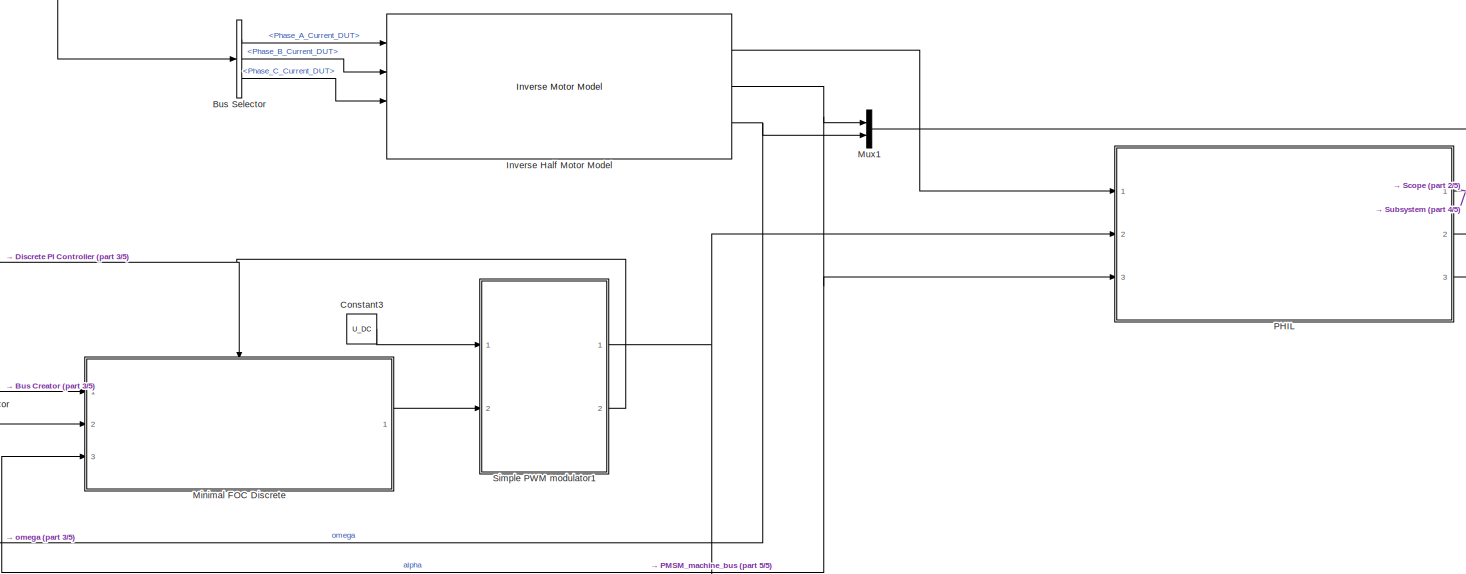
[diagram: root canvas - part 1/5, central region]
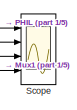
[diagram: root canvas - part 2/5, middle right region]
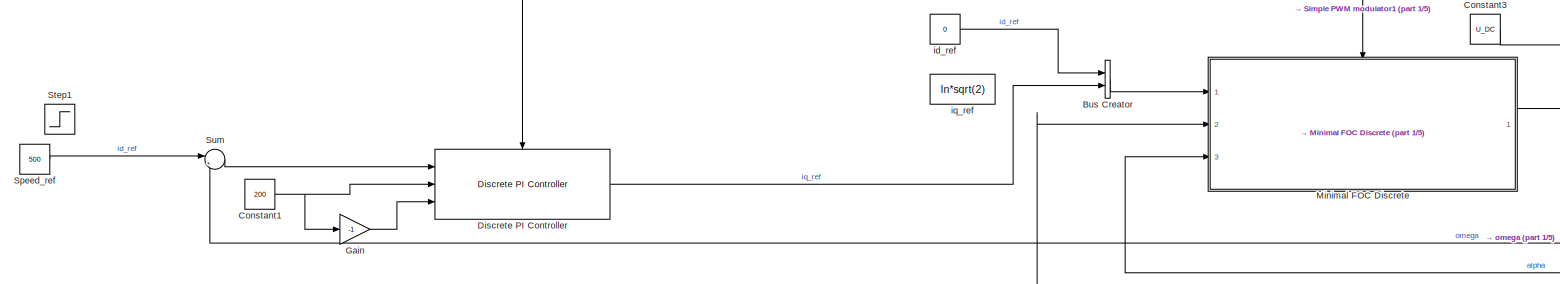
[diagram: root canvas - part 3/5, middle left region]
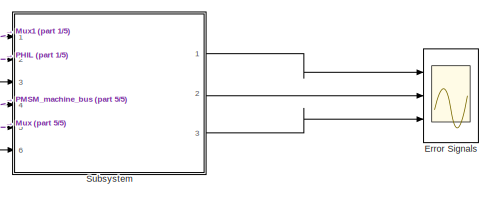
[diagram: root canvas - part 4/5, bottom right region]
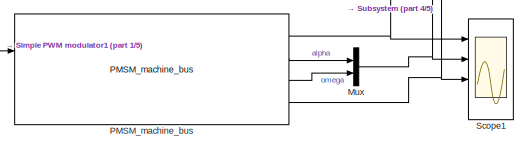
[diagram: root canvas - part 5/5, bottom center region]
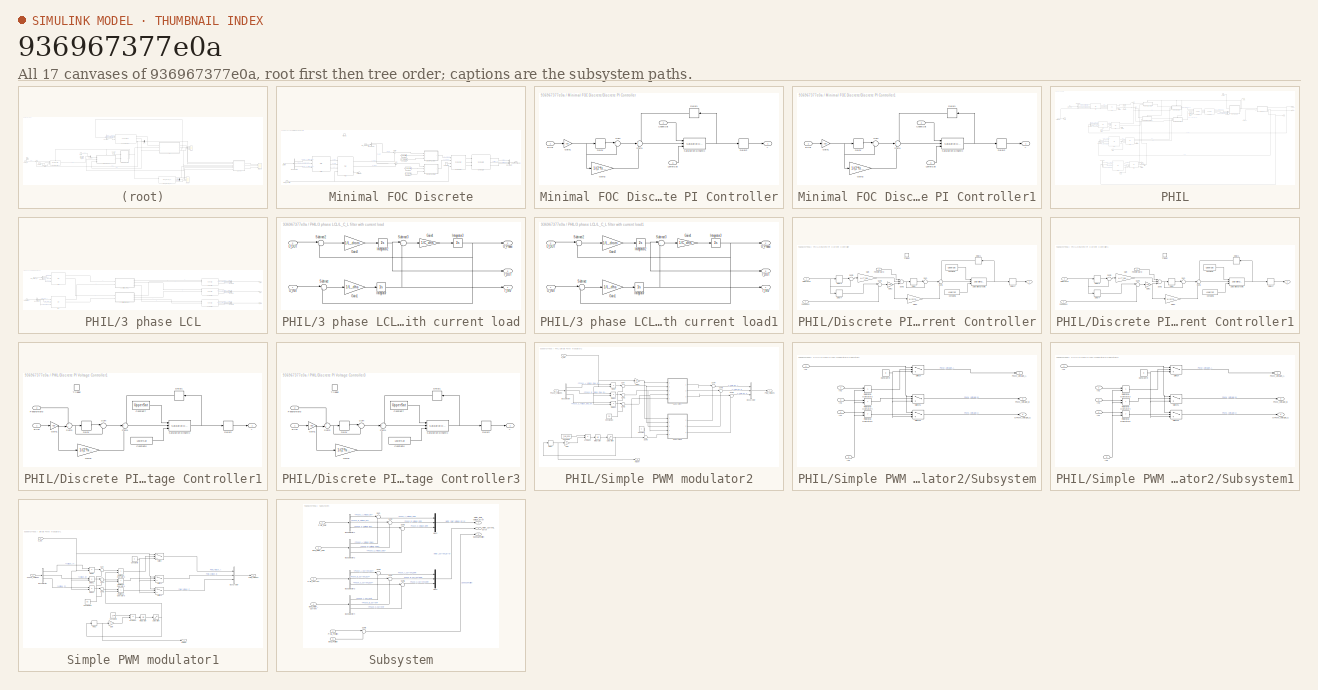
[diagram: thumbnail index - all 17 canvases of the model, root first then tree order]
MODEL slx_936967377e0a
KIND model
CONFIG AbsTol = auto
CONFIG EnableMultiTasking = off
CONFIG FixedStep = auto
CONFIG MaxStep = 1e-6
CONFIG MinStep = auto
CONFIG RelTol = 1e-3
CONFIG SampleTimeConstraint = Unconstrained
CONFIG Solver = VariableStepAuto
CONFIG SolverName = VariableStepAuto
CONFIG StartTime = 0.0
CONFIG StopTime = 5
BLOCK [BusCreator] Bus Creator
  DisplayOption = bar
  InheritFromInputs = on
  Inputs = 2
  Ports = [2, 1]
BLOCK [BusSelector] Bus Selector
  OutputAsBus = off
  OutputSignals = Phase_A_Current_DUT,Phase_B_Current_DUT,Phase_C_Current_DUT
  Ports = [1, 3]
BLOCK [Constant] Constant1
  Value = 200
BLOCK [Constant] Constant3
  Value = U_DC
BLOCK [Reference] Discrete PI Controller  REF=controllers/Discrete PI Controller  (lib defined in mdl_0f1bdf7b97cc, mdl_b570f3ba1b2b, +8 more)
  Ports = [3, 1, 0, 1]
  SourceBlock = controllers/Discrete PI Controller
  SourceType = Continous PI Controller
BLOCK [Scope] Error Signals
  Floating = off
  NumInputPorts = 3
  Ports = [3]
  ScopeSpecificationString = Simulink.scopes.TimeScopeBlockCfg('CurrentConfiguration', extmgr.ConfigurationSet(extmgr.Configuration('Core','General UI',true),extmgr.Configuration('Core','Source UI',true),extmgr.Configuration('Sources','WiredSimulink',true,'DataLoggingVariableName','ScopeData1'),extmgr.Configuration('Visuals','Time Domain',true,'SerializedDisplays',{struct('MinYLimReal','-132.72818','MaxYLimReal','132.21074','...<+3005ch>
BLOCK [Gain] Gain
  Gain = -1
  OutDataTypeStr = Inherit: Inherit via internal rule
  ParamDataTypeStr = Inherit: Inherit via internal rule
  SaturateOnIntegerOverflow = off
BLOCK [Reference] Inverse Half Motor Model  REF=PE_components/Inverse Motor Model
  Ports = [4, 3]
  SourceBlock = PE_components/Inverse Motor Model
  SourceType = SubSystem
BLOCK [SubSystem] Minimal FOC Discrete
  AncestorBlock = controllers/Minimal FOC Discrete
  Ports = [3, 1, 0, 1]
  RequestExecContextInheritance = off
BLOCK [BusCreator] Minimal FOC Discrete/Bus Creator
  DisplayOption = bar
  InheritFromInputs = on
  Inputs = 3
  Ports = [3, 1]
BLOCK [BusSelector] Minimal FOC Discrete/Bus Selector
  OutputAsBus = off
  OutputSignals = id_ref,iq_ref
  Ports = [1, 2]
BLOCK [BusSelector] Minimal FOC Discrete/Bus Selector1
  OutputAsBus = off
  OutputSignals = Phase_A_Current_DUT,Phase_B_Current_DUT,Phase_C_Current_DUT
  Ports = [1, 3]
BLOCK [Reference] Minimal FOC Discrete/Clark  REF=coordinate_transformations/Clark  (lib defined in slx_d357c885b4a9)
  Ports = [3, 3]
  SourceBlock = coordinate_transformations/Clark
  SourceType = SubSystem
BLOCK [Constant] Minimal FOC Discrete/Constant
  Value = -U_DC/sqrt(3)
BLOCK [Constant] Minimal FOC Discrete/Constant1
  Value = U_DC/sqrt(3)
BLOCK [Constant] Minimal FOC Discrete/Constant2
  Value = 0
BLOCK [Constant] Minimal FOC Discrete/Constant6
  Value = -U_DC/sqrt(3)
BLOCK [Constant] Minimal FOC Discrete/Constant7
  Value = U_DC/sqrt(3)
BLOCK [Inport] Minimal FOC Discrete/Current
  IconDisplay = Port number
  Port = 2
BLOCK [SubSystem] Minimal FOC Discrete/Discrete PI Controller
  AncestorBlock = controllers/Discrete PI Controller
  Ports = [3, 1]
  RequestExecContextInheritance = off
BLOCK [Delay] Minimal FOC Discrete/Discrete PI Controller/Delay
  DelayLength = 1
  InputPortMap = u0
  Ports = [1, 1]
BLOCK [Delay] Minimal FOC Discrete/Discrete PI Controller/Delay1
  DelayLength = 1
  InputPortMap = u0
  Ports = [1, 1]
BLOCK [Delay] Minimal FOC Discrete/Discrete PI Controller/Delay2
  DelayLength = 1
  InputPortMap = u0
  Ports = [1, 1]
BLOCK [Inport] Minimal FOC Discrete/Discrete PI Controller/Error
  IconDisplay = Port number
BLOCK [Gain] Minimal FOC Discrete/Discrete PI Controller/Gain1
  Gain = Apd
  OutDataTypeStr = Inherit: Inherit via internal rule
  ParamDataTypeStr = Inherit: Inherit via internal rule
  SaturateOnIntegerOverflow = off
BLOCK [Gain] Minimal FOC Discrete/Discrete PI Controller/Gain2
  Gain = 1/(2*fs*Tid)
  OutDataTypeStr = Inherit: Inherit via internal rule
  ParamDataTypeStr = Inherit: Inherit via internal rule
  SaturateOnIntegerOverflow = off
BLOCK [Inport] Minimal FOC Discrete/Discrete PI Controller/LowerSat
  IconDisplay = Port number
  Port = 3
BLOCK [Reference] Minimal FOC Discrete/Discrete PI Controller/Saturation Dynamic  REF=simulink/Discontinuities/Saturation
Dynamic
  Ports = [3, 1]
  SourceBlock = simulink/Discontinuities/Saturation\nDynamic
  SourceProductBaseCode = SL
  SourceProductName = Simulink
  SourceType = Saturation Dynamic
BLOCK [Sum] Minimal FOC Discrete/Discrete PI Controller/Sum
  IconShape = round
  InputSameDT = off
  Inputs = |-+
  OutDataTypeStr = Inherit: Inherit via internal rule
  Ports = [2, 1]
  SaturateOnIntegerOverflow = off
BLOCK [Sum] Minimal FOC Discrete/Discrete PI Controller/Sum1
  IconShape = round
  InputSameDT = off
  Inputs = +++
  OutDataTypeStr = Inherit: Inherit via internal rule
  Ports = [3, 1]
  SaturateOnIntegerOverflow = off
BLOCK [Inport] Minimal FOC Discrete/Discrete PI Controller/UpperSat
  IconDisplay = Port number
  Port = 2
BLOCK [Outport] Minimal FOC Discrete/Discrete PI Controller/y
  IconDisplay = Port number
BLOCK [SubSystem] Minimal FOC Discrete/Discrete PI Controller1
  AncestorBlock = controllers/Discrete PI Controller
  Ports = [3, 1]
  RequestExecContextInheritance = off
BLOCK [Delay] Minimal FOC Discrete/Discrete PI Controller1/Delay
  DelayLength = 1
  InputPortMap = u0
  Ports = [1, 1]
BLOCK [Delay] Minimal FOC Discrete/Discrete PI Controller1/Delay1
  DelayLength = 1
  InputPortMap = u0
  Ports = [1, 1]
BLOCK [Delay] Minimal FOC Discrete/Discrete PI Controller1/Delay2
  DelayLength = 1
  InputPortMap = u0
  Ports = [1, 1]
BLOCK [Inport] Minimal FOC Discrete/Discrete PI Controller1/Error
  IconDisplay = Port number
BLOCK [Gain] Minimal FOC Discrete/Discrete PI Controller1/Gain1
  Gain = Apd
  OutDataTypeStr = Inherit: Inherit via internal rule
  ParamDataTypeStr = Inherit: Inherit via internal rule
  SaturateOnIntegerOverflow = off
BLOCK [Gain] Minimal FOC Discrete/Discrete PI Controller1/Gain2
  Gain = 1/(2*fs*Tid)
  OutDataTypeStr = Inherit: Inherit via internal rule
  ParamDataTypeStr = Inherit: Inherit via internal rule
  SaturateOnIntegerOverflow = off
BLOCK [Inport] Minimal FOC Discrete/Discrete PI Controller1/LowerSat
  IconDisplay = Port number
  Port = 3
BLOCK [Reference] Minimal FOC Discrete/Discrete PI Controller1/Saturation Dynamic  REF=simulink/Discontinuities/Saturation
Dynamic
  Ports = [3, 1]
  SourceBlock = simulink/Discontinuities/Saturation\nDynamic
  SourceProductBaseCode = SL
  SourceProductName = Simulink
  SourceType = Saturation Dynamic
BLOCK [Sum] Minimal FOC Discrete/Discrete PI Controller1/Sum
  IconShape = round
  InputSameDT = off
  Inputs = |-+
  OutDataTypeStr = Inherit: Inherit via internal rule
  Ports = [2, 1]
  SaturateOnIntegerOverflow = off
BLOCK [Sum] Minimal FOC Discrete/Discrete PI Controller1/Sum1
  IconShape = round
  InputSameDT = off
  Inputs = +++
  OutDataTypeStr = Inherit: Inherit via internal rule
  Ports = [3, 1]
  SaturateOnIntegerOverflow = off
BLOCK [Inport] Minimal FOC Discrete/Discrete PI Controller1/UpperSat
  IconDisplay = Port number
  Port = 2
BLOCK [Outport] Minimal FOC Discrete/Discrete PI Controller1/y
  IconDisplay = Port number
BLOCK [Inport] Minimal FOC Discrete/Idq_demands
  IconDisplay = Port number
BLOCK [Reference] Minimal FOC Discrete/Inverse-Clark  REF=coordinate_transformations/Inverse-Clark  (lib defined in slx_d357c885b4a9)
  Ports = [3, 3]
  SourceBlock = coordinate_transformations/Inverse-Clark
  SourceType = SubSystem
BLOCK [Reference] Minimal FOC Discrete/Inverse-Park  REF=coordinate_transformations/Inverse-Park  (lib defined in slx_d357c885b4a9)
  Ports = [4, 3]
  SourceBlock = coordinate_transformations/Inverse-Park
  SourceType = SubSystem
BLOCK [Reference] Minimal FOC Discrete/Park  REF=coordinate_transformations/Park  (lib defined in slx_d357c885b4a9)
  Ports = [4, 3]
  SourceBlock = coordinate_transformations/Park
  SourceType = SubSystem
BLOCK [Outport] Minimal FOC Discrete/Phase_Voltages
  IconDisplay = Port number
BLOCK [Sum] Minimal FOC Discrete/Sum
  IconShape = round
  InputSameDT = off
  Inputs = |+-
  OutDataTypeStr = Inherit: Inherit via internal rule
  Ports = [2, 1]
  SaturateOnIntegerOverflow = off
BLOCK [Sum] Minimal FOC Discrete/Sum1
  IconShape = round
  InputSameDT = off
  Inputs = |+-
  OutDataTypeStr = Inherit: Inherit via internal rule
  Ports = [2, 1]
  SaturateOnIntegerOverflow = off
BLOCK [Terminator] Minimal FOC Discrete/Terminator
BLOCK [TriggerPort] Minimal FOC Discrete/Trigger1
  PortDimensions = 1
  Ports = []
  StatesWhenEnabling = held
  TriggerType = either
  VariantControl = Variant
BLOCK [Inport] Minimal FOC Discrete/motor_position
  IconDisplay = Port number
  Port = 3
BLOCK [Mux] Mux
  DisplayOption = bar
  Inputs = 2
  Ports = [2, 1]
BLOCK [Mux] Mux1
  DisplayOption = bar
  Inputs = 2
  Ports = [2, 1]
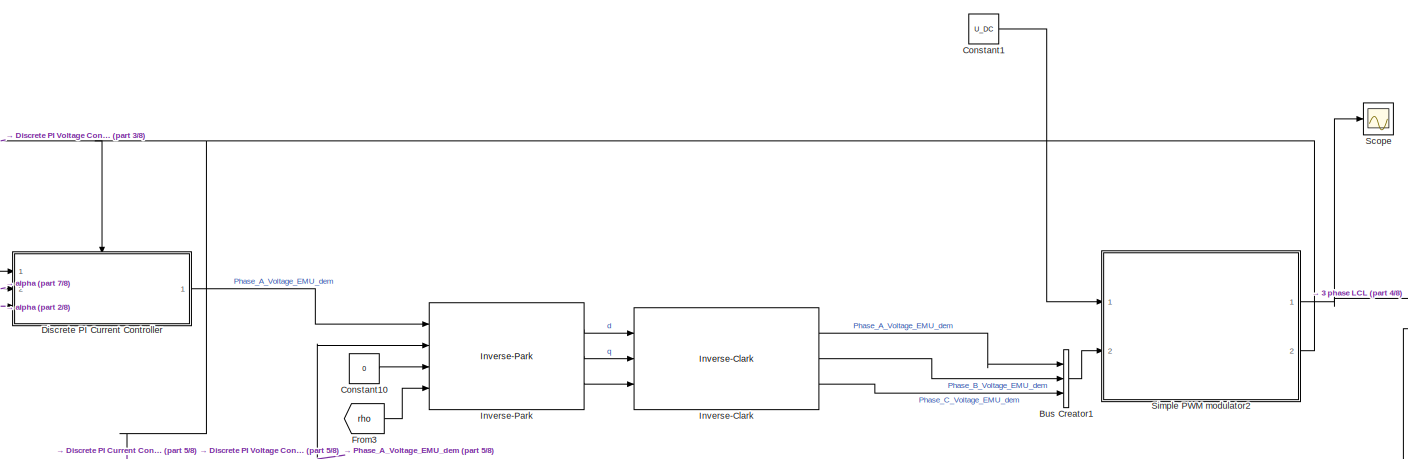
[diagram: PHIL - part 1/8, top center region]
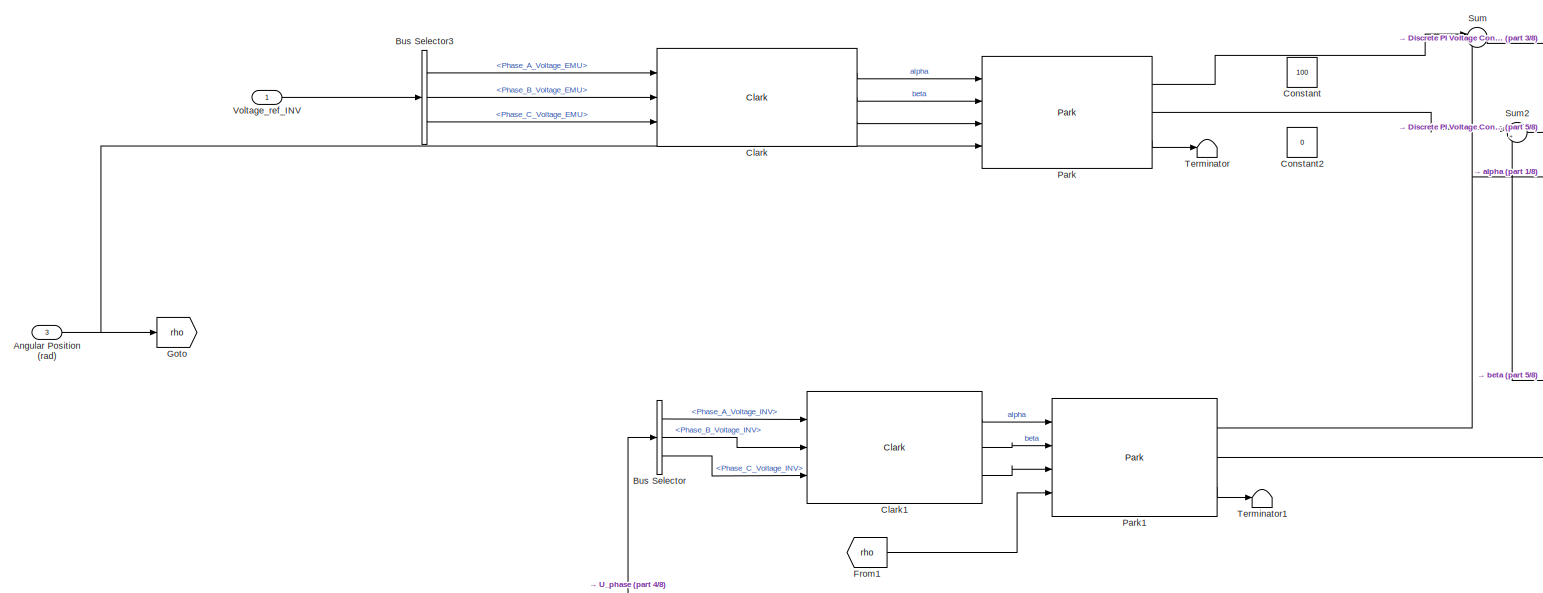
[diagram: PHIL - part 2/8, top left region]
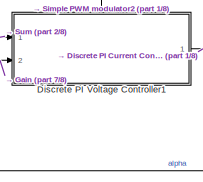
[diagram: PHIL - part 3/8, top center region]
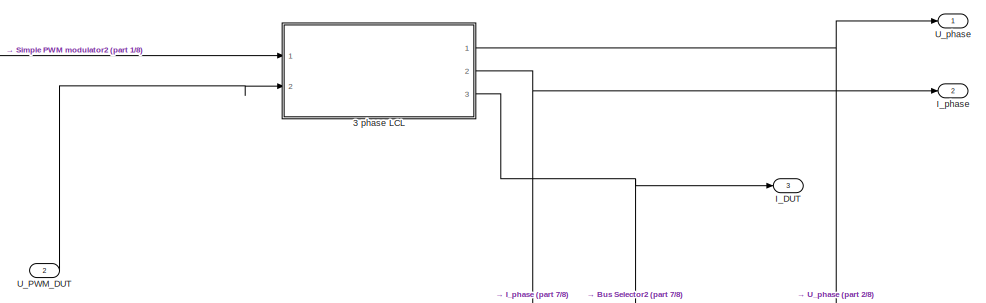
[diagram: PHIL - part 4/8, top right region]
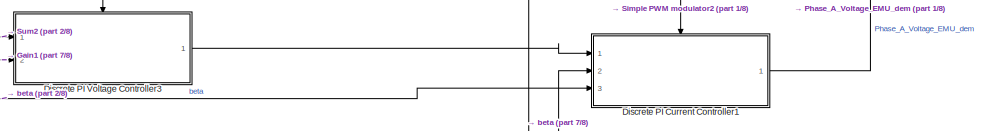
[diagram: PHIL - part 5/8, top center region]
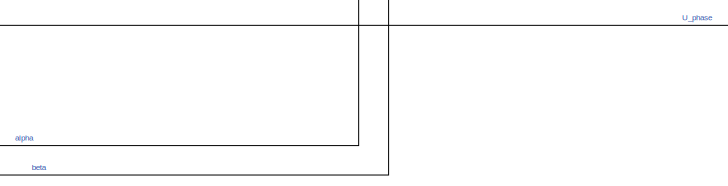
[diagram: PHIL - part 6/8, central region]
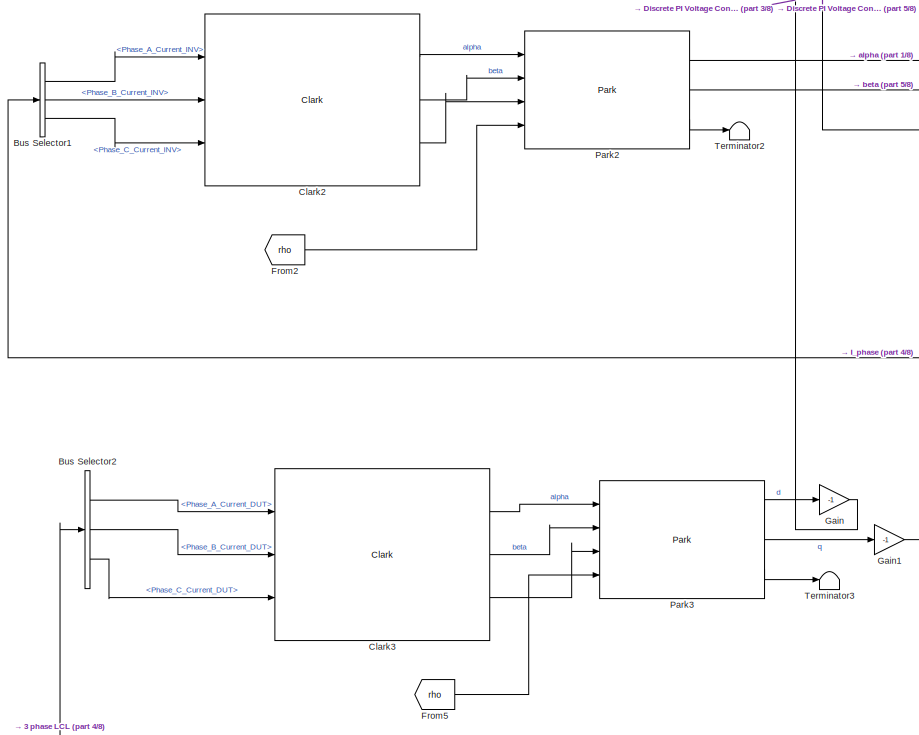
[diagram: PHIL - part 7/8, bottom left region]
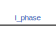
[diagram: PHIL - part 8/8, bottom center region]
BLOCK [SubSystem] PHIL
  Ports = [3, 3]
  RequestExecContextInheritance = off
BLOCK [SubSystem] PHIL/3 phase LCL
  Ports = [2, 3]
  RequestExecContextInheritance = off
BLOCK [BusCreator] PHIL/3 phase LCL/Bus Creator
  DisplayOption = bar
  InheritFromInputs = on
  Inputs = 3
  Ports = [3, 1]
BLOCK [BusCreator] PHIL/3 phase LCL/Bus Creator1
  DisplayOption = bar
  InheritFromInputs = on
  Inputs = 3
  Ports = [3, 1]
BLOCK [BusCreator] PHIL/3 phase LCL/Bus Creator2
  DisplayOption = bar
  InheritFromInputs = on
  Inputs = 3
  Ports = [3, 1]
BLOCK [BusSelector] PHIL/3 phase LCL/Bus Selector
  OutputAsBus = off
  OutputSignals = U_PWM_INV_A,U_PWM_INV_B,U_PWM_INV_C
  Ports = [1, 3]
BLOCK [BusSelector] PHIL/3 phase LCL/Bus Selector1
  OutputAsBus = off
  OutputSignals = PWM_Voltage_A,PWM_Voltage_B,PWM_Voltage_C
  Ports = [1, 3]
BLOCK [Reference] PHIL/3 phase LCL/Clark  REF=coordinate_transformations/Clark  (lib defined in slx_d357c885b4a9)
  Ports = [3, 3]
  SourceBlock = coordinate_transformations/Clark
  SourceType = SubSystem
BLOCK [Reference] PHIL/3 phase LCL/Clark1  REF=coordinate_transformations/Clark  (lib defined in slx_d357c885b4a9)
  Ports = [3, 3]
  SourceBlock = coordinate_transformations/Clark
  SourceType = SubSystem
BLOCK [Outport] PHIL/3 phase LCL/I_DUT
  IconDisplay = Port number
  Port = 3
BLOCK [Outport] PHIL/3 phase LCL/I_INV
  IconDisplay = Port number
  Port = 2
BLOCK [Reference] PHIL/3 phase LCL/Inverse-Clark  REF=coordinate_transformations/Inverse-Clark  (lib defined in slx_d357c885b4a9)
  Ports = [3, 3]
  SourceBlock = coordinate_transformations/Inverse-Clark
  SourceType = SubSystem
BLOCK [Reference] PHIL/3 phase LCL/Inverse-Clark1  REF=coordinate_transformations/Inverse-Clark  (lib defined in slx_d357c885b4a9)
  Ports = [3, 3]
  SourceBlock = coordinate_transformations/Inverse-Clark
  SourceType = SubSystem
BLOCK [Reference] PHIL/3 phase LCL/Inverse-Clark2  REF=coordinate_transformations/Inverse-Clark  (lib defined in slx_d357c885b4a9)
  Ports = [3, 3]
  SourceBlock = coordinate_transformations/Inverse-Clark
  SourceType = SubSystem
BLOCK [SubSystem] PHIL/3 phase LCL/L_C_L filter with current load
  Ports = [2, 3]
  RequestExecContextInheritance = off
BLOCK [Gain] PHIL/3 phase LCL/L_C_L filter with current load/Gain1
  Gain = 1/L_dhs
  OutDataTypeStr = Inherit: Inherit via internal rule
  ParamDataTypeStr = Inherit: Inherit via internal rule
  SaturateOnIntegerOverflow = off
BLOCK [Gain] PHIL/3 phase LCL/L_C_L filter with current load/Gain3
  Gain = 1/L_drom
  OutDataTypeStr = Inherit: Inherit via internal rule
  ParamDataTypeStr = Inherit: Inherit via internal rule
  SaturateOnIntegerOverflow = off
BLOCK [Gain] PHIL/3 phase LCL/L_C_L filter with current load/Gain4
  Gain = 1/C_dhs
  OutDataTypeStr = Inherit: Inherit via internal rule
  ParamDataTypeStr = Inherit: Inherit via internal rule
  SaturateOnIntegerOverflow = off
BLOCK [Outport] PHIL/3 phase LCL/L_C_L filter with current load/I_DUT
  IconDisplay = Port number
  Port = 3
BLOCK [Outport] PHIL/3 phase LCL/L_C_L filter with current load/I_INV
  IconDisplay = Port number
BLOCK [Integrator] PHIL/3 phase LCL/L_C_L filter with current load/Integrator
  Ports = [1, 1]
BLOCK [Integrator] PHIL/3 phase LCL/L_C_L filter with current load/Integrator2
  Ports = [1, 1]
BLOCK [Integrator] PHIL/3 phase LCL/L_C_L filter with current load/Integrator3
  Ports = [1, 1]
BLOCK [Sum] PHIL/3 phase LCL/L_C_L filter with current load/Subtract
  IconShape = round
  InputSameDT = off
  Inputs = |+-
  OutDataTypeStr = Inherit: Inherit via internal rule
  Ports = [2, 1]
  SaturateOnIntegerOverflow = off
BLOCK [Sum] PHIL/3 phase LCL/L_C_L filter with current load/Subtract2
  IconShape = round
  InputSameDT = off
  Inputs = |+-
  OutDataTypeStr = Inherit: Inherit via internal rule
  Ports = [2, 1]
  SaturateOnIntegerOverflow = off
BLOCK [Sum] PHIL/3 phase LCL/L_C_L filter with current load/Subtract3
  IconShape = round
  InputSameDT = off
  Inputs = |++
  OutDataTypeStr = Inherit: Inherit via internal rule
  Ports = [2, 1]
  SaturateOnIntegerOverflow = off
BLOCK [Inport] PHIL/3 phase LCL/L_C_L filter with current load/U_DUT
  IconDisplay = Port number
  Port = 2
BLOCK [Inport] PHIL/3 phase LCL/L_C_L filter with current load/U_INV
  IconDisplay = Port number
BLOCK [Outport] PHIL/3 phase LCL/L_C_L filter with current load/U_Phase
  IconDisplay = Port number
  Port = 2
BLOCK [SubSystem] PHIL/3 phase LCL/L_C_L filter with current load1
  Ports = [2, 3]
  RequestExecContextInheritance = off
BLOCK [Gain] PHIL/3 phase LCL/L_C_L filter with current load1/Gain1
  Gain = 1/L_dhs
  OutDataTypeStr = Inherit: Inherit via internal rule
  ParamDataTypeStr = Inherit: Inherit via internal rule
  SaturateOnIntegerOverflow = off
BLOCK [Gain] PHIL/3 phase LCL/L_C_L filter with current load1/Gain3
  Gain = 1/L_drom
  OutDataTypeStr = Inherit: Inherit via internal rule
  ParamDataTypeStr = Inherit: Inherit via internal rule
  SaturateOnIntegerOverflow = off
BLOCK [Gain] PHIL/3 phase LCL/L_C_L filter with current load1/Gain4
  Gain = 1/C_dhs
  OutDataTypeStr = Inherit: Inherit via internal rule
  ParamDataTypeStr = Inherit: Inherit via internal rule
  SaturateOnIntegerOverflow = off
BLOCK [Outport] PHIL/3 phase LCL/L_C_L filter with current load1/I_DUT
  IconDisplay = Port number
  Port = 3
BLOCK [Outport] PHIL/3 phase LCL/L_C_L filter with current load1/I_INV
  IconDisplay = Port number
BLOCK [Integrator] PHIL/3 phase LCL/L_C_L filter with current load1/Integrator
  Ports = [1, 1]
BLOCK [Integrator] PHIL/3 phase LCL/L_C_L filter with current load1/Integrator2
  Ports = [1, 1]
BLOCK [Integrator] PHIL/3 phase LCL/L_C_L filter with current load1/Integrator3
  Ports = [1, 1]
BLOCK [Sum] PHIL/3 phase LCL/L_C_L filter with current load1/Subtract
  IconShape = round
  InputSameDT = off
  Inputs = |+-
  OutDataTypeStr = Inherit: Inherit via internal rule
  Ports = [2, 1]
  SaturateOnIntegerOverflow = off
BLOCK [Sum] PHIL/3 phase LCL/L_C_L filter with current load1/Subtract2
  IconShape = round
  InputSameDT = off
  Inputs = |+-
  OutDataTypeStr = Inherit: Inherit via internal rule
  Ports = [2, 1]
  SaturateOnIntegerOverflow = off
BLOCK [Sum] PHIL/3 phase LCL/L_C_L filter with current load1/Subtract3
  IconShape = round
  InputSameDT = off
  Inputs = |++
  OutDataTypeStr = Inherit: Inherit via internal rule
  Ports = [2, 1]
  SaturateOnIntegerOverflow = off
BLOCK [Inport] PHIL/3 phase LCL/L_C_L filter with current load1/U_DUT
  IconDisplay = Port number
  Port = 2
BLOCK [Inport] PHIL/3 phase LCL/L_C_L filter with current load1/U_INV
  IconDisplay = Port number
BLOCK [Outport] PHIL/3 phase LCL/L_C_L filter with current load1/U_Phase
  IconDisplay = Port number
  Port = 2
BLOCK [Inport] PHIL/3 phase LCL/PWM_Voltage_DUT
  IconDisplay = Port number
  Port = 2
BLOCK [Inport] PHIL/3 phase LCL/PWM_Voltage_INV
  IconDisplay = Port number
BLOCK [Outport] PHIL/3 phase LCL/U_INV
  IconDisplay = Port number
BLOCK [Inport] PHIL/Angular Position (rad)
  IconDisplay = Port number
  Port = 3
BLOCK [BusCreator] PHIL/Bus Creator1
  DisplayOption = bar
  InheritFromInputs = on
  Inputs = 3
  Ports = [3, 1]
BLOCK [BusSelector] PHIL/Bus Selector
  OutputAsBus = off
  OutputSignals = Phase_A_Voltage_INV,Phase_B_Voltage_INV,Phase_C_Voltage_INV
  Ports = [1, 3]
BLOCK [BusSelector] PHIL/Bus Selector1
  OutputAsBus = off
  OutputSignals = Phase_A_Current_INV,Phase_B_Current_INV,Phase_C_Current_INV
  Ports = [1, 3]
BLOCK [BusSelector] PHIL/Bus Selector2
  OutputAsBus = off
  OutputSignals = Phase_A_Current_DUT,Phase_B_Current_DUT,Phase_C_Current_DUT
  Ports = [1, 3]
BLOCK [BusSelector] PHIL/Bus Selector3
  OutputAsBus = off
  OutputSignals = Phase_A_Voltage_EMU,Phase_B_Voltage_EMU,Phase_C_Voltage_EMU
  Ports = [1, 3]
BLOCK [Reference] PHIL/Clark  REF=coordinate_transformations/Clark  (lib defined in slx_d357c885b4a9)
  Ports = [3, 3]
  SourceBlock = coordinate_transformations/Clark
  SourceType = SubSystem
BLOCK [Reference] PHIL/Clark1  REF=coordinate_transformations/Clark  (lib defined in slx_d357c885b4a9)
  Ports = [3, 3]
  SourceBlock = coordinate_transformations/Clark
  SourceType = SubSystem
BLOCK [Reference] PHIL/Clark2  REF=coordinate_transformations/Clark  (lib defined in slx_d357c885b4a9)
  Ports = [3, 3]
  SourceBlock = coordinate_transformations/Clark
  SourceType = SubSystem
BLOCK [Reference] PHIL/Clark3  REF=coordinate_transformations/Clark  (lib defined in slx_d357c885b4a9)
  Ports = [3, 3]
  SourceBlock = coordinate_transformations/Clark
  SourceType = SubSystem
BLOCK [Constant] PHIL/Constant
  Value = 100
BLOCK [Constant] PHIL/Constant1
  Value = U_DC
BLOCK [Constant] PHIL/Constant10
  Value = 0
BLOCK [Constant] PHIL/Constant2
  Value = 0
BLOCK [SubSystem] PHIL/Discrete PI Current Controller
  AncestorBlock = controllers/Discrete PI Controller
  Ports = [3, 1, 0, 1]
  RequestExecContextInheritance = off
BLOCK [Constant] PHIL/Discrete PI Current Controller/Constant6
  Value = LowerSat
BLOCK [Constant] PHIL/Discrete PI Current Controller/Constant7
  Value = UpperSat
BLOCK [Delay] PHIL/Discrete PI Current Controller/Delay
  DelayLength = 1
  InputPortMap = u0
  Ports = [1, 1]
BLOCK [Delay] PHIL/Discrete PI Current Controller/Delay1
  DelayLength = 1
  InputPortMap = u0
  Ports = [1, 1]
BLOCK [Delay] PHIL/Discrete PI Current Controller/Delay2
  DelayLength = 1
  InputPortMap = u0
  Ports = [1, 1]
BLOCK [Delay] PHIL/Discrete PI Current Controller/Delay3
  DelayLength = 1
  InputPortMap = u0
  Ports = [1, 1]
BLOCK [Delay] PHIL/Discrete PI Current Controller/Delay4
  InputPortMap = u0
  Ports = [1, 1]
BLOCK [Inport] PHIL/Discrete PI Current Controller/Feedback
  IconDisplay = Port number
  Port = 2
BLOCK [Inport] PHIL/Discrete PI Current Controller/Feedforward
  IconDisplay = Port number
  Port = 3
BLOCK [Gain] PHIL/Discrete PI Current Controller/Gain
  Gain = L/(T_sw_dhs/2)
  OutDataTypeStr = Inherit: Inherit via internal rule
  ParamDataTypeStr = Inherit: Inherit via internal rule
  SaturateOnIntegerOverflow = off
BLOCK [Gain] PHIL/Discrete PI Current Controller/Gain1
  Gain = Apd
  OutDataTypeStr = Inherit: Inherit via internal rule
  ParamDataTypeStr = Inherit: Inherit via internal rule
  SaturateOnIntegerOverflow = off
BLOCK [Gain] PHIL/Discrete PI Current Controller/Gain2
  Gain = 1/(2*fs*Tid)
  OutDataTypeStr = Inherit: Inherit via internal rule
  ParamDataTypeStr = Inherit: Inherit via internal rule
  SaturateOnIntegerOverflow = off
BLOCK [Inport] PHIL/Discrete PI Current Controller/Reference
  IconDisplay = Port number
BLOCK [Reference] PHIL/Discrete PI Current Controller/Saturation Dynamic  REF=simulink/Discontinuities/Saturation
Dynamic
  Ports = [3, 1]
  SourceBlock = simulink/Discontinuities/Saturation\nDynamic
  SourceProductBaseCode = SL
  SourceProductName = Simulink
  SourceType = Saturation Dynamic
BLOCK [Sum] PHIL/Discrete PI Current Controller/Sum
  IconShape = round
  InputSameDT = off
  Inputs = |-+
  OutDataTypeStr = Inherit: Inherit via internal rule
  Ports = [2, 1]
  SaturateOnIntegerOverflow = off
BLOCK [Sum] PHIL/Discrete PI Current Controller/Sum1
  IconShape = round
  InputSameDT = off
  Inputs = +++
  OutDataTypeStr = Inherit: Inherit via internal rule
  Ports = [3, 1]
  SaturateOnIntegerOverflow = off
BLOCK [Sum] PHIL/Discrete PI Current Controller/Sum2
  InputSameDT = off
  Inputs = +++
  OutDataTypeStr = Inherit: Inherit via internal rule
  Ports = [3, 1]
  SaturateOnIntegerOverflow = off
BLOCK [Sum] PHIL/Discrete PI Current Controller/Sum3
  IconShape = round
  InputSameDT = off
  Inputs = |-+
  OutDataTypeStr = Inherit: Inherit via internal rule
  Ports = [2, 1]
  SaturateOnIntegerOverflow = off
BLOCK [Sum] PHIL/Discrete PI Current Controller/Sum4
  IconShape = round
  InputSameDT = off
  Inputs = |+-
  OutDataTypeStr = Inherit: Inherit via internal rule
  Ports = [2, 1]
  SaturateOnIntegerOverflow = off
BLOCK [TriggerPort] PHIL/Discrete PI Current Controller/Trigger
  PortDimensions = 1
  Ports = []
  StatesWhenEnabling = held
  TriggerType = either
  VariantControl = Variant
BLOCK [Outport] PHIL/Discrete PI Current Controller/y
  IconDisplay = Port number
BLOCK [SubSystem] PHIL/Discrete PI Current Controller1
  AncestorBlock = controllers/Discrete PI Controller
  Ports = [3, 1, 0, 1]
  RequestExecContextInheritance = off
BLOCK [Constant] PHIL/Discrete PI Current Controller1/Constant6
  Value = LowerSat
BLOCK [Constant] PHIL/Discrete PI Current Controller1/Constant7
  Value = UpperSat
BLOCK [Delay] PHIL/Discrete PI Current Controller1/Delay
  DelayLength = 1
  InputPortMap = u0
  Ports = [1, 1]
BLOCK [Delay] PHIL/Discrete PI Current Controller1/Delay1
  DelayLength = 1
  InputPortMap = u0
  Ports = [1, 1]
BLOCK [Delay] PHIL/Discrete PI Current Controller1/Delay2
  DelayLength = 1
  InputPortMap = u0
  Ports = [1, 1]
BLOCK [Delay] PHIL/Discrete PI Current Controller1/Delay3
  DelayLength = 1
  InputPortMap = u0
  Ports = [1, 1]
BLOCK [Delay] PHIL/Discrete PI Current Controller1/Delay4
  InputPortMap = u0
  Ports = [1, 1]
BLOCK [Inport] PHIL/Discrete PI Current Controller1/Feedback
  IconDisplay = Port number
  Port = 2
BLOCK [Inport] PHIL/Discrete PI Current Controller1/Feedforward
  IconDisplay = Port number
  Port = 3
BLOCK [Gain] PHIL/Discrete PI Current Controller1/Gain
  Gain = L/(T_sw_dhs/2)
  OutDataTypeStr = Inherit: Inherit via internal rule
  ParamDataTypeStr = Inherit: Inherit via internal rule
  SaturateOnIntegerOverflow = off
BLOCK [Gain] PHIL/Discrete PI Current Controller1/Gain1
  Gain = Apd
  OutDataTypeStr = Inherit: Inherit via internal rule
  ParamDataTypeStr = Inherit: Inherit via internal rule
  SaturateOnIntegerOverflow = off
BLOCK [Gain] PHIL/Discrete PI Current Controller1/Gain2
  Gain = 1/(2*fs*Tid)
  OutDataTypeStr = Inherit: Inherit via internal rule
  ParamDataTypeStr = Inherit: Inherit via internal rule
  SaturateOnIntegerOverflow = off
BLOCK [Inport] PHIL/Discrete PI Current Controller1/Reference
  IconDisplay = Port number
BLOCK [Reference] PHIL/Discrete PI Current Controller1/Saturation Dynamic  REF=simulink/Discontinuities/Saturation
Dynamic
  Ports = [3, 1]
  SourceBlock = simulink/Discontinuities/Saturation\nDynamic
  SourceProductBaseCode = SL
  SourceProductName = Simulink
  SourceType = Saturation Dynamic
BLOCK [Sum] PHIL/Discrete PI Current Controller1/Sum
  IconShape = round
  InputSameDT = off
  Inputs = |-+
  OutDataTypeStr = Inherit: Inherit via internal rule
  Ports = [2, 1]
  SaturateOnIntegerOverflow = off
BLOCK [Sum] PHIL/Discrete PI Current Controller1/Sum1
  IconShape = round
  InputSameDT = off
  Inputs = +++
  OutDataTypeStr = Inherit: Inherit via internal rule
  Ports = [3, 1]
  SaturateOnIntegerOverflow = off
BLOCK [Sum] PHIL/Discrete PI Current Controller1/Sum2
  InputSameDT = off
  Inputs = +++
  OutDataTypeStr = Inherit: Inherit via internal rule
  Ports = [3, 1]
  SaturateOnIntegerOverflow = off
BLOCK [Sum] PHIL/Discrete PI Current Controller1/Sum3
  IconShape = round
  InputSameDT = off
  Inputs = |-+
  OutDataTypeStr = Inherit: Inherit via internal rule
  Ports = [2, 1]
  SaturateOnIntegerOverflow = off
BLOCK [Sum] PHIL/Discrete PI Current Controller1/Sum4
  IconShape = round
  InputSameDT = off
  Inputs = |+-
  OutDataTypeStr = Inherit: Inherit via internal rule
  Ports = [2, 1]
  SaturateOnIntegerOverflow = off
BLOCK [TriggerPort] PHIL/Discrete PI Current Controller1/Trigger
  PortDimensions = 1
  Ports = []
  StatesWhenEnabling = held
  TriggerType = either
  VariantControl = Variant
BLOCK [Outport] PHIL/Discrete PI Current Controller1/y
  IconDisplay = Port number
BLOCK [SubSystem] PHIL/Discrete PI Voltage Controller1
  AncestorBlock = controllers/Discrete PI Controller
  Ports = [2, 1, 0, 1]
  RequestExecContextInheritance = off
BLOCK [Constant] PHIL/Discrete PI Voltage Controller1/Constant6
  Value = LowerSat
BLOCK [Constant] PHIL/Discrete PI Voltage Controller1/Constant7
  Value = UpperSat
BLOCK [Delay] PHIL/Discrete PI Voltage Controller1/Delay
  DelayLength = 1
  InputPortMap = u0
  Ports = [1, 1]
BLOCK [Delay] PHIL/Discrete PI Voltage Controller1/Delay1
  DelayLength = 1
  InputPortMap = u0
  Ports = [1, 1]
BLOCK [Delay] PHIL/Discrete PI Voltage Controller1/Delay2
  DelayLength = 1
  InputPortMap = u0
  Ports = [1, 1]
BLOCK [Inport] PHIL/Discrete PI Voltage Controller1/Error
  IconDisplay = Port number
BLOCK [Inport] PHIL/Discrete PI Voltage Controller1/Feedforward
  IconDisplay = Port number
  Port = 2
BLOCK [Gain] PHIL/Discrete PI Voltage Controller1/Gain1
  Gain = Apd
  OutDataTypeStr = Inherit: Inherit via internal rule
  ParamDataTypeStr = Inherit: Inherit via internal rule
  SaturateOnIntegerOverflow = off
BLOCK [Gain] PHIL/Discrete PI Voltage Controller1/Gain2
  Gain = 1/(2*fs*Tid)
  OutDataTypeStr = Inherit: Inherit via internal rule
  ParamDataTypeStr = Inherit: Inherit via internal rule
  SaturateOnIntegerOverflow = off
BLOCK [Reference] PHIL/Discrete PI Voltage Controller1/Saturation Dynamic  REF=simulink/Discontinuities/Saturation
Dynamic
  Ports = [3, 1]
  SourceBlock = simulink/Discontinuities/Saturation\nDynamic
  SourceProductBaseCode = SL
  SourceProductName = Simulink
  SourceType = Saturation Dynamic
BLOCK [Sum] PHIL/Discrete PI Voltage Controller1/Sum
  IconShape = round
  InputSameDT = off
  Inputs = |-+
  OutDataTypeStr = Inherit: Inherit via internal rule
  Ports = [2, 1]
  SaturateOnIntegerOverflow = off
BLOCK [Sum] PHIL/Discrete PI Voltage Controller1/Sum1
  IconShape = round
  InputSameDT = off
  Inputs = +++
  OutDataTypeStr = Inherit: Inherit via internal rule
  Ports = [3, 1]
  SaturateOnIntegerOverflow = off
BLOCK [Sum] PHIL/Discrete PI Voltage Controller1/Sum2
  IconShape = round
  InputSameDT = off
  Inputs = ++|
  OutDataTypeStr = Inherit: Inherit via internal rule
  Ports = [2, 1]
  SaturateOnIntegerOverflow = off
BLOCK [TriggerPort] PHIL/Discrete PI Voltage Controller1/Trigger
  PortDimensions = 1
  Ports = []
  StatesWhenEnabling = held
  TriggerType = either
  VariantControl = Variant
BLOCK [Outport] PHIL/Discrete PI Voltage Controller1/y
  IconDisplay = Port number
BLOCK [SubSystem] PHIL/Discrete PI Voltage Controller3
  AncestorBlock = controllers/Discrete PI Controller
  Ports = [2, 1, 0, 1]
  RequestExecContextInheritance = off
BLOCK [Constant] PHIL/Discrete PI Voltage Controller3/Constant6
  Value = LowerSat
BLOCK [Constant] PHIL/Discrete PI Voltage Controller3/Constant7
  Value = UpperSat
BLOCK [Delay] PHIL/Discrete PI Voltage Controller3/Delay
  DelayLength = 1
  InputPortMap = u0
  Ports = [1, 1]
BLOCK [Delay] PHIL/Discrete PI Voltage Controller3/Delay1
  DelayLength = 1
  InputPortMap = u0
  Ports = [1, 1]
BLOCK [Delay] PHIL/Discrete PI Voltage Controller3/Delay2
  DelayLength = 1
  InputPortMap = u0
  Ports = [1, 1]
BLOCK [Inport] PHIL/Discrete PI Voltage Controller3/Error
  IconDisplay = Port number
BLOCK [Inport] PHIL/Discrete PI Voltage Controller3/Feedforward
  IconDisplay = Port number
  Port = 2
BLOCK [Gain] PHIL/Discrete PI Voltage Controller3/Gain1
  Gain = Apd
  OutDataTypeStr = Inherit: Inherit via internal rule
  ParamDataTypeStr = Inherit: Inherit via internal rule
  SaturateOnIntegerOverflow = off
BLOCK [Gain] PHIL/Discrete PI Voltage Controller3/Gain2
  Gain = 1/(2*fs*Tid)
  OutDataTypeStr = Inherit: Inherit via internal rule
  ParamDataTypeStr = Inherit: Inherit via internal rule
  SaturateOnIntegerOverflow = off
BLOCK [Reference] PHIL/Discrete PI Voltage Controller3/Saturation Dynamic  REF=simulink/Discontinuities/Saturation
Dynamic
  Ports = [3, 1]
  SourceBlock = simulink/Discontinuities/Saturation\nDynamic
  SourceProductBaseCode = SL
  SourceProductName = Simulink
  SourceType = Saturation Dynamic
BLOCK [Sum] PHIL/Discrete PI Voltage Controller3/Sum
  IconShape = round
  InputSameDT = off
  Inputs = |-+
  OutDataTypeStr = Inherit: Inherit via internal rule
  Ports = [2, 1]
  SaturateOnIntegerOverflow = off
BLOCK [Sum] PHIL/Discrete PI Voltage Controller3/Sum1
  IconShape = round
  InputSameDT = off
  Inputs = +++
  OutDataTypeStr = Inherit: Inherit via internal rule
  Ports = [3, 1]
  SaturateOnIntegerOverflow = off
BLOCK [Sum] PHIL/Discrete PI Voltage Controller3/Sum2
  IconShape = round
  InputSameDT = off
  Inputs = ++|
  OutDataTypeStr = Inherit: Inherit via internal rule
  Ports = [2, 1]
  SaturateOnIntegerOverflow = off
BLOCK [TriggerPort] PHIL/Discrete PI Voltage Controller3/Trigger
  PortDimensions = 1
  Ports = []
  StatesWhenEnabling = held
  TriggerType = either
  VariantControl = Variant
BLOCK [Outport] PHIL/Discrete PI Voltage Controller3/y
  IconDisplay = Port number
BLOCK [From] PHIL/From1
  GotoTag = rho
BLOCK [From] PHIL/From2
  GotoTag = rho
BLOCK [From] PHIL/From3
  GotoTag = rho
BLOCK [From] PHIL/From5
  GotoTag = rho
BLOCK [Gain] PHIL/Gain
  Gain = -1
  OutDataTypeStr = Inherit: Inherit via internal rule
  ParamDataTypeStr = Inherit: Inherit via internal rule
  SaturateOnIntegerOverflow = off
BLOCK [Gain] PHIL/Gain1
  Gain = -1
  OutDataTypeStr = Inherit: Inherit via internal rule
  ParamDataTypeStr = Inherit: Inherit via internal rule
  SaturateOnIntegerOverflow = off
BLOCK [Goto] PHIL/Goto
  GotoTag = rho
BLOCK [Outport] PHIL/I_DUT
  IconDisplay = Port number
  Port = 3
BLOCK [Outport] PHIL/I_phase
  IconDisplay = Port number
  Port = 2
BLOCK [Reference] PHIL/Inverse-Clark  REF=coordinate_transformations/Inverse-Clark  (lib defined in slx_d357c885b4a9)
  Ports = [3, 3]
  SourceBlock = coordinate_transformations/Inverse-Clark
  SourceType = SubSystem
BLOCK [Reference] PHIL/Inverse-Park  REF=coordinate_transformations/Inverse-Park  (lib defined in slx_d357c885b4a9)
  Ports = [4, 3]
  SourceBlock = coordinate_transformations/Inverse-Park
  SourceType = SubSystem
BLOCK [Reference] PHIL/Park  REF=coordinate_transformations/Park  (lib defined in slx_d357c885b4a9)
  Ports = [4, 3]
  SourceBlock = coordinate_transformations/Park
  SourceType = SubSystem
BLOCK [Reference] PHIL/Park1  REF=coordinate_transformations/Park  (lib defined in slx_d357c885b4a9)
  Ports = [4, 3]
  SourceBlock = coordinate_transformations/Park
  SourceType = SubSystem
BLOCK [Reference] PHIL/Park2  REF=coordinate_transformations/Park  (lib defined in slx_d357c885b4a9)
  Ports = [4, 3]
  SourceBlock = coordinate_transformations/Park
  SourceType = SubSystem
BLOCK [Reference] PHIL/Park3  REF=coordinate_transformations/Park  (lib defined in slx_d357c885b4a9)
  Ports = [4, 3]
  SourceBlock = coordinate_transformations/Park
  SourceType = SubSystem
BLOCK [Scope] PHIL/Scope
  Floating = off
  NumInputPorts = 1
  Ports = [1]
  ScopeSpecificationString = Simulink.scopes.TimeScopeBlockCfg('CurrentConfiguration', extmgr.ConfigurationSet(extmgr.Configuration('Core','General UI',true),extmgr.Configuration('Core','Source UI',true),extmgr.Configuration('Sources','WiredSimulink',true,'DataLoggingVariableName','ScopeData1'),extmgr.Configuration('Visuals','Time Domain',true,'SerializedDisplays',{struct('MinYLimReal','-87.5','MaxYLimReal','787.5','YLabelRea...<+1536ch>
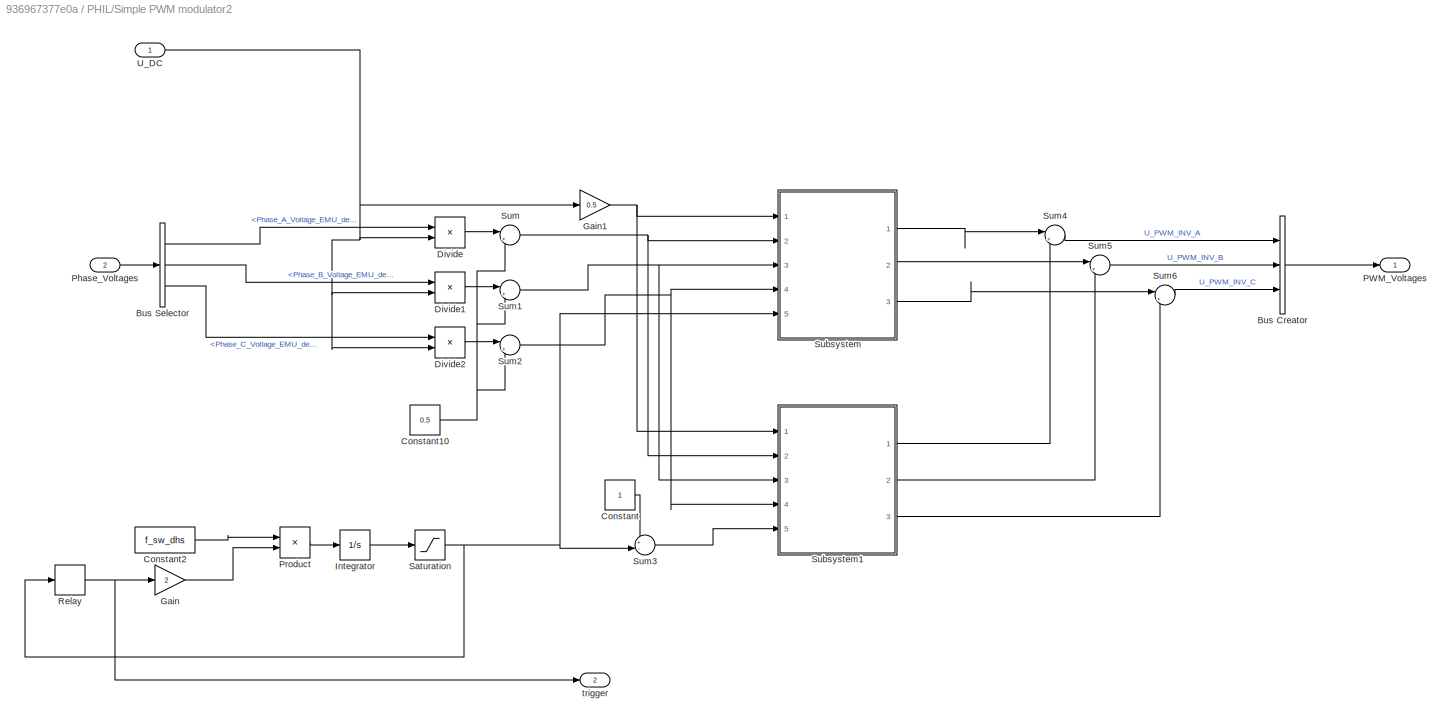
BLOCK [SubSystem] PHIL/Simple PWM modulator2
  AncestorBlock = controllers/Simple PWM modulator
  Ports = [2, 2]
  RequestExecContextInheritance = off
BLOCK [BusCreator] PHIL/Simple PWM modulator2/Bus Creator
  DisplayOption = bar
  InheritFromInputs = on
  Inputs = 3
  Ports = [3, 1]
BLOCK [BusSelector] PHIL/Simple PWM modulator2/Bus Selector
  OutputAsBus = off
  OutputSignals = Phase_A_Voltage_EMU_dem,Phase_B_Voltage_EMU_dem,Phase_C_Voltage_EMU_dem
  Ports = [1, 3]
BLOCK [Constant] PHIL/Simple PWM modulator2/Constant
BLOCK [Constant] PHIL/Simple PWM modulator2/Constant10
  Value = 0.5
BLOCK [Constant] PHIL/Simple PWM modulator2/Constant2
  Value = f_sw_dhs
BLOCK [Product] PHIL/Simple PWM modulator2/Divide
  InputSameDT = off
  Inputs = */
  OutDataTypeStr = Inherit: Inherit via internal rule
  Ports = [2, 1]
  RndMeth = Floor
  SaturateOnIntegerOverflow = off
BLOCK [Product] PHIL/Simple PWM modulator2/Divide1
  InputSameDT = off
  Inputs = */
  OutDataTypeStr = Inherit: Inherit via internal rule
  Ports = [2, 1]
  RndMeth = Floor
  SaturateOnIntegerOverflow = off
BLOCK [Product] PHIL/Simple PWM modulator2/Divide2
  InputSameDT = off
  Inputs = */
  OutDataTypeStr = Inherit: Inherit via internal rule
  Ports = [2, 1]
  RndMeth = Floor
  SaturateOnIntegerOverflow = off
BLOCK [Gain] PHIL/Simple PWM modulator2/Gain
  Gain = 2
  OutDataTypeStr = Inherit: Inherit via internal rule
  ParamDataTypeStr = Inherit: Inherit via internal rule
  SaturateOnIntegerOverflow = off
BLOCK [Gain] PHIL/Simple PWM modulator2/Gain1
  Gain = 0.5
  OutDataTypeStr = Inherit: Inherit via internal rule
  ParamDataTypeStr = Inherit: Inherit via internal rule
  SaturateOnIntegerOverflow = off
BLOCK [Integrator] PHIL/Simple PWM modulator2/Integrator
  Ports = [1, 1]
BLOCK [Outport] PHIL/Simple PWM modulator2/PWM_Voltages
  IconDisplay = Port number
BLOCK [Inport] PHIL/Simple PWM modulator2/Phase_Voltages
  IconDisplay = Port number
  Port = 2
BLOCK [Product] PHIL/Simple PWM modulator2/Product
  InputSameDT = off
  OutDataTypeStr = Inherit: Inherit via internal rule
  Ports = [2, 1]
  RndMeth = Floor
  SaturateOnIntegerOverflow = off
BLOCK [Relay] PHIL/Simple PWM modulator2/Relay
  OffOutputValue = 1
  OffSwitchValue = 0
  OnOutputValue = -1
  OnSwitchValue = 1
BLOCK [Saturate] PHIL/Simple PWM modulator2/Saturation
  InputPortMap = u0
  LowerLimit = 0
  Ports = [1, 1]
  UpperLimit = 1
BLOCK [SubSystem] PHIL/Simple PWM modulator2/Subsystem
  Ports = [5, 3]
  RequestExecContextInheritance = off
BLOCK [Constant] PHIL/Simple PWM modulator2/Subsystem/Constant9
  Value = 0
BLOCK [Inport] PHIL/Simple PWM modulator2/Subsystem/In1
  IconDisplay = Port number
BLOCK [Inport] PHIL/Simple PWM modulator2/Subsystem/In2
  IconDisplay = Port number
  Port = 2
BLOCK [Inport] PHIL/Simple PWM modulator2/Subsystem/In3
  IconDisplay = Port number
  Port = 3
BLOCK [Inport] PHIL/Simple PWM modulator2/Subsystem/In4
  IconDisplay = Port number
  Port = 4
BLOCK [Inport] PHIL/Simple PWM modulator2/Subsystem/In5
  IconDisplay = Port number
  Port = 5
BLOCK [Outport] PHIL/Simple PWM modulator2/Subsystem/OPWM_Voltage_C
  IconDisplay = Port number
  Port = 3
BLOCK [Outport] PHIL/Simple PWM modulator2/Subsystem/PWM_Voltage_A
  IconDisplay = Port number
BLOCK [Outport] PHIL/Simple PWM modulator2/Subsystem/PWM_Voltage_B
  IconDisplay = Port number
  Port = 2
BLOCK [RelationalOperator] PHIL/Simple PWM modulator2/Subsystem/Relational Operator3
  InputSameDT = off
  Operator = >
  OutDataTypeStr = boolean
  Ports = [2, 1]
  RndMeth = Simplest
BLOCK [RelationalOperator] PHIL/Simple PWM modulator2/Subsystem/Relational Operator4
  InputSameDT = off
  Operator = >
  OutDataTypeStr = boolean
  Ports = [2, 1]
  RndMeth = Simplest
BLOCK [RelationalOperator] PHIL/Simple PWM modulator2/Subsystem/Relational Operator5
  InputSameDT = off
  Operator = >
  OutDataTypeStr = boolean
  Ports = [2, 1]
  RndMeth = Simplest
BLOCK [Switch] PHIL/Simple PWM modulator2/Subsystem/Switch
  InputSameDT = off
  SaturateOnIntegerOverflow = off
  Threshold = 1
BLOCK [Switch] PHIL/Simple PWM modulator2/Subsystem/Switch1
  InputSameDT = off
  SaturateOnIntegerOverflow = off
  Threshold = 1
BLOCK [Switch] PHIL/Simple PWM modulator2/Subsystem/Switch2
  InputSameDT = off
  SaturateOnIntegerOverflow = off
  Threshold = 1
BLOCK [SubSystem] PHIL/Simple PWM modulator2/Subsystem1
  Ports = [5, 3]
  RequestExecContextInheritance = off
BLOCK [Constant] PHIL/Simple PWM modulator2/Subsystem1/Constant9
  Value = 0
BLOCK [Inport] PHIL/Simple PWM modulator2/Subsystem1/In1
  IconDisplay = Port number
BLOCK [Inport] PHIL/Simple PWM modulator2/Subsystem1/In2
  IconDisplay = Port number
  Port = 2
BLOCK [Inport] PHIL/Simple PWM modulator2/Subsystem1/In3
  IconDisplay = Port number
  Port = 3
BLOCK [Inport] PHIL/Simple PWM modulator2/Subsystem1/In4
  IconDisplay = Port number
  Port = 4
BLOCK [Inport] PHIL/Simple PWM modulator2/Subsystem1/In5
  IconDisplay = Port number
  Port = 5
BLOCK [Outport] PHIL/Simple PWM modulator2/Subsystem1/OPWM_Voltage_C
  IconDisplay = Port number
  Port = 3
BLOCK [Outport] PHIL/Simple PWM modulator2/Subsystem1/PWM_Voltage_A
  IconDisplay = Port number
BLOCK [Outport] PHIL/Simple PWM modulator2/Subsystem1/PWM_Voltage_B
  IconDisplay = Port number
  Port = 2
BLOCK [RelationalOperator] PHIL/Simple PWM modulator2/Subsystem1/Relational Operator3
  InputSameDT = off
  Operator = >
  OutDataTypeStr = boolean
  Ports = [2, 1]
  RndMeth = Simplest
BLOCK [RelationalOperator] PHIL/Simple PWM modulator2/Subsystem1/Relational Operator4
  InputSameDT = off
  Operator = >
  OutDataTypeStr = boolean
  Ports = [2, 1]
  RndMeth = Simplest
BLOCK [RelationalOperator] PHIL/Simple PWM modulator2/Subsystem1/Relational Operator5
  InputSameDT = off
  Operator = >
  OutDataTypeStr = boolean
  Ports = [2, 1]
  RndMeth = Simplest
BLOCK [Switch] PHIL/Simple PWM modulator2/Subsystem1/Switch
  InputSameDT = off
  SaturateOnIntegerOverflow = off
  Threshold = 1
BLOCK [Switch] PHIL/Simple PWM modulator2/Subsystem1/Switch1
  InputSameDT = off
  SaturateOnIntegerOverflow = off
  Threshold = 1
BLOCK [Switch] PHIL/Simple PWM modulator2/Subsystem1/Switch2
  InputSameDT = off
  SaturateOnIntegerOverflow = off
  Threshold = 1
BLOCK [Sum] PHIL/Simple PWM modulator2/Sum
  IconShape = round
  InputSameDT = off
  Inputs = |++
  OutDataTypeStr = Inherit: Inherit via internal rule
  Ports = [2, 1]
  SaturateOnIntegerOverflow = off
BLOCK [Sum] PHIL/Simple PWM modulator2/Sum1
  IconShape = round
  InputSameDT = off
  Inputs = |++
  OutDataTypeStr = Inherit: Inherit via internal rule
  Ports = [2, 1]
  SaturateOnIntegerOverflow = off
BLOCK [Sum] PHIL/Simple PWM modulator2/Sum2
  IconShape = round
  InputSameDT = off
  Inputs = |++
  OutDataTypeStr = Inherit: Inherit via internal rule
  Ports = [2, 1]
  SaturateOnIntegerOverflow = off
BLOCK [Sum] PHIL/Simple PWM modulator2/Sum3
  IconShape = round
  InputSameDT = off
  Inputs = +-|
  OutDataTypeStr = Inherit: Inherit via internal rule
  Ports = [2, 1]
  SaturateOnIntegerOverflow = off
BLOCK [Sum] PHIL/Simple PWM modulator2/Sum4
  IconShape = round
  InputSameDT = off
  Inputs = |++
  OutDataTypeStr = Inherit: Inherit via internal rule
  Ports = [2, 1]
  SaturateOnIntegerOverflow = off
BLOCK [Sum] PHIL/Simple PWM modulator2/Sum5
  IconShape = round
  InputSameDT = off
  Inputs = |++
  OutDataTypeStr = Inherit: Inherit via internal rule
  Ports = [2, 1]
  SaturateOnIntegerOverflow = off
BLOCK [Sum] PHIL/Simple PWM modulator2/Sum6
  IconShape = round
  InputSameDT = off
  Inputs = |++
  OutDataTypeStr = Inherit: Inherit via internal rule
  Ports = [2, 1]
  SaturateOnIntegerOverflow = off
BLOCK [Inport] PHIL/Simple PWM modulator2/U_DC
  IconDisplay = Port number
BLOCK [Outport] PHIL/Simple PWM modulator2/trigger
  IconDisplay = Port number
  Port = 2
BLOCK [Sum] PHIL/Sum
  IconShape = round
  InputSameDT = off
  Inputs = |+-
  OutDataTypeStr = Inherit: Inherit via internal rule
  Ports = [2, 1]
  SaturateOnIntegerOverflow = off
BLOCK [Sum] PHIL/Sum2
  IconShape = round
  InputSameDT = off
  Inputs = |+-
  OutDataTypeStr = Inherit: Inherit via internal rule
  Ports = [2, 1]
  SaturateOnIntegerOverflow = off
BLOCK [Terminator] PHIL/Terminator
BLOCK [Terminator] PHIL/Terminator1
BLOCK [Terminator] PHIL/Terminator2
BLOCK [Terminator] PHIL/Terminator3
BLOCK [Inport] PHIL/U_PWM_DUT 
  IconDisplay = Port number
  Port = 2
BLOCK [Outport] PHIL/U_phase
  IconDisplay = Port number
BLOCK [Inport] PHIL/Voltage_ref_INV
  IconDisplay = Port number
BLOCK [Reference] PMSM_machine_bus  REF=PE_components/PMSM_machine_bus
  Ports = [2, 4]
  SourceBlock = PE_components/PMSM_machine_bus
  SourceType = SubSystem
BLOCK [Scope] Scope
  Floating = off
  NumInputPorts = 4
  Ports = [4]
  ScopeSpecificationString = Simulink.scopes.TimeScopeBlockCfg('CurrentConfiguration', extmgr.ConfigurationSet(extmgr.Configuration('Core','General UI',true),extmgr.Configuration('Core','Source UI',true),extmgr.Configuration('Sources','WiredSimulink',true,'DataLoggingVariableName','ScopeData1'),extmgr.Configuration('Visuals','Time Domain',true,'SerializedDisplays',{struct('MinYLimReal','-481.80717','MaxYLimReal','480.39245','...<+4127ch>
BLOCK [Scope] Scope1
  Floating = off
  NumInputPorts = 4
  Ports = [4]
  ScopeSpecificationString = Simulink.scopes.TimeScopeBlockCfg('CurrentConfiguration', extmgr.ConfigurationSet(extmgr.Configuration('Core','General UI',true),extmgr.Configuration('Core','Source UI',true),extmgr.Configuration('Sources','WiredSimulink',true,'DataLoggingVariableName','ScopeData1'),extmgr.Configuration('Visuals','Time Domain',true,'SerializedDisplays',{struct('MinYLimReal','-310.05828','MaxYLimReal','310.05887','...<+3533ch>
BLOCK [SubSystem] Simple PWM modulator1
  AncestorBlock = controllers/Simple PWM modulator
  Ports = [2, 2]
  RequestExecContextInheritance = off
BLOCK [BusCreator] Simple PWM modulator1/Bus Creator
  DisplayOption = bar
  InheritFromInputs = on
  Inputs = 3
  Ports = [3, 1]
BLOCK [BusSelector] Simple PWM modulator1/Bus Selector
  OutputAsBus = off
  OutputSignals = Voltage_A,Voltage_B,Voltage_C
  Ports = [1, 3]
BLOCK [Constant] Simple PWM modulator1/Constant10
  Value = 0.5
BLOCK [Constant] Simple PWM modulator1/Constant2
  Value = f_sw
BLOCK [Constant] Simple PWM modulator1/Constant9
  Value = 0
BLOCK [Product] Simple PWM modulator1/Divide
  InputSameDT = off
  Inputs = */
  OutDataTypeStr = Inherit: Inherit via internal rule
  Ports = [2, 1]
  RndMeth = Floor
  SaturateOnIntegerOverflow = off
BLOCK [Product] Simple PWM modulator1/Divide1
  InputSameDT = off
  Inputs = */
  OutDataTypeStr = Inherit: Inherit via internal rule
  Ports = [2, 1]
  RndMeth = Floor
  SaturateOnIntegerOverflow = off
BLOCK [Product] Simple PWM modulator1/Divide2
  InputSameDT = off
  Inputs = */
  OutDataTypeStr = Inherit: Inherit via internal rule
  Ports = [2, 1]
  RndMeth = Floor
  SaturateOnIntegerOverflow = off
BLOCK [Gain] Simple PWM modulator1/Gain
  Gain = 2
  OutDataTypeStr = Inherit: Inherit via internal rule
  ParamDataTypeStr = Inherit: Inherit via internal rule
  SaturateOnIntegerOverflow = off
BLOCK [Integrator] Simple PWM modulator1/Integrator
  Ports = [1, 1]
BLOCK [Outport] Simple PWM modulator1/PWM_Voltages
  IconDisplay = Port number
BLOCK [Inport] Simple PWM modulator1/Phase_Voltages
  IconDisplay = Port number
  Port = 2
BLOCK [Product] Simple PWM modulator1/Product
  InputSameDT = off
  OutDataTypeStr = Inherit: Inherit via internal rule
  Ports = [2, 1]
  RndMeth = Floor
  SaturateOnIntegerOverflow = off
BLOCK [RelationalOperator] Simple PWM modulator1/Relational Operator3
  InputSameDT = off
  Operator = >
  OutDataTypeStr = boolean
  Ports = [2, 1]
  RndMeth = Simplest
BLOCK [RelationalOperator] Simple PWM modulator1/Relational Operator4
  InputSameDT = off
  Operator = >
  OutDataTypeStr = boolean
  Ports = [2, 1]
  RndMeth = Simplest
BLOCK [RelationalOperator] Simple PWM modulator1/Relational Operator5
  InputSameDT = off
  Operator = >
  OutDataTypeStr = boolean
  Ports = [2, 1]
  RndMeth = Simplest
BLOCK [Relay] Simple PWM modulator1/Relay
  OffOutputValue = 1
  OffSwitchValue = 0
  OnOutputValue = -1
  OnSwitchValue = 1
BLOCK [Saturate] Simple PWM modulator1/Saturation
  InputPortMap = u0
  LowerLimit = 0
  Ports = [1, 1]
  UpperLimit = 1
BLOCK [Sum] Simple PWM modulator1/Sum
  IconShape = round
  InputSameDT = off
  Inputs = |++
  OutDataTypeStr = Inherit: Inherit via internal rule
  Ports = [2, 1]
  SaturateOnIntegerOverflow = off
BLOCK [Sum] Simple PWM modulator1/Sum1
  IconShape = round
  InputSameDT = off
  Inputs = |++
  OutDataTypeStr = Inherit: Inherit via internal rule
  Ports = [2, 1]
  SaturateOnIntegerOverflow = off
BLOCK [Sum] Simple PWM modulator1/Sum2
  IconShape = round
  InputSameDT = off
  Inputs = |++
  OutDataTypeStr = Inherit: Inherit via internal rule
  Ports = [2, 1]
  SaturateOnIntegerOverflow = off
BLOCK [Switch] Simple PWM modulator1/Switch
  InputSameDT = off
  SaturateOnIntegerOverflow = off
  Threshold = 1
BLOCK [Switch] Simple PWM modulator1/Switch1
  InputSameDT = off
  SaturateOnIntegerOverflow = off
  Threshold = 1
BLOCK [Switch] Simple PWM modulator1/Switch2
  InputSameDT = off
  SaturateOnIntegerOverflow = off
  Threshold = 1
BLOCK [Inport] Simple PWM modulator1/U_DC
  IconDisplay = Port number
BLOCK [Outport] Simple PWM modulator1/trigger
  IconDisplay = Port number
  Port = 2
BLOCK [Constant] Speed_ref
  Value = 500
BLOCK [Step] Step1
  After = 1000
  Before = 500
  SampleTime = 0
  Time = 0.75
BLOCK [SubSystem] Subsystem
  Ports = [6, 3]
  RequestExecContextInheritance = off
BLOCK [BusSelector] Subsystem/Bus Selector1
  OutputAsBus = off
  OutputSignals = Phase_A_Voltage_INV,Phase_B_Voltage_INV,Phase_C_Voltage_INV
  Ports = [1, 3]
BLOCK [BusSelector] Subsystem/Bus Selector2
  OutputAsBus = off
  OutputSignals = Phase_A_Voltage_EMU,Phase_B_Voltage_EMU,Phase_C_Voltage_EMU
  Ports = [1, 3]
BLOCK [BusSelector] Subsystem/Bus Selector3
  OutputAsBus = off
  OutputSignals = Phase_A_Current_DUT,Phase_B_Current_DUT,Phase_C_Current_DUT
  Ports = [1, 3]
BLOCK [BusSelector] Subsystem/Bus Selector4
  OutputAsBus = off
  OutputSignals = Phase_A_Current,Phase_B_Current,Phase_C_Current
  Ports = [1, 3]
BLOCK [Inport] Subsystem/Ideal_Position
  IconDisplay = Port number
  Port = 5
BLOCK [Inport] Subsystem/Ideal_motor_Current
  IconDisplay = Port number
  Port = 4
BLOCK [Inport] Subsystem/Ideal_motor_EMF
  IconDisplay = Port number
  Port = 6
BLOCK [Outport] Subsystem/Motor_Current_Error
  IconDisplay = Port number
  Port = 2
BLOCK [Outport] Subsystem/Motor_EMF_Voltage_Error
  IconDisplay = Port number
BLOCK [Mux] Subsystem/Mux2
  DisplayOption = bar
  Inputs = 3
  Ports = [3, 1]
BLOCK [Mux] Subsystem/Mux3
  DisplayOption = bar
  Inputs = 3
  Ports = [3, 1]
BLOCK [Inport] Subsystem/P-HIL_Current
  IconDisplay = Port number
  Port = 3
BLOCK [Inport] Subsystem/P-HIL_EMF
  IconDisplay = Port number
  Port = 2
BLOCK [Inport] Subsystem/P-HIL_Position
  IconDisplay = Port number
BLOCK [Outport] Subsystem/Speed & Position
  IconDisplay = Port number
  Port = 3
BLOCK [Sum] Subsystem/Sum
  IconShape = round
  InputSameDT = off
  Inputs = |+-
  OutDataTypeStr = Inherit: Inherit via internal rule
  Ports = [2, 1]
  SaturateOnIntegerOverflow = off
BLOCK [Sum] Subsystem/Sum1
  IconShape = round
  InputSameDT = off
  Inputs = |+-
  OutDataTypeStr = Inherit: Inherit via internal rule
  Ports = [2, 1]
  SaturateOnIntegerOverflow = off
BLOCK [Sum] Subsystem/Sum2
  IconShape = round
  InputSameDT = off
  Inputs = |+-
  OutDataTypeStr = Inherit: Inherit via internal rule
  Ports = [2, 1]
  SaturateOnIntegerOverflow = off
BLOCK [Sum] Subsystem/Sum3
  IconShape = round
  InputSameDT = off
  Inputs = |+-
  OutDataTypeStr = Inherit: Inherit via internal rule
  Ports = [2, 1]
  SaturateOnIntegerOverflow = off
BLOCK [Sum] Subsystem/Sum4
  IconShape = round
  InputSameDT = off
  Inputs = |+-
  OutDataTypeStr = Inherit: Inherit via internal rule
  Ports = [2, 1]
  SaturateOnIntegerOverflow = off
BLOCK [Sum] Subsystem/Sum5
  IconShape = round
  InputSameDT = off
  Inputs = |+-
  OutDataTypeStr = Inherit: Inherit via internal rule
  Ports = [2, 1]
  SaturateOnIntegerOverflow = off
BLOCK [Sum] Subsystem/Sum6
  IconShape = round
  InputSameDT = off
  Inputs = |+-
  OutDataTypeStr = Inherit: Inherit via internal rule
  Ports = [2, 1]
  SaturateOnIntegerOverflow = off
BLOCK [Sum] Sum
  IconShape = round
  InputSameDT = off
  Inputs = |+-
  OutDataTypeStr = Inherit: Inherit via internal rule
  Ports = [2, 1]
  SaturateOnIntegerOverflow = off
BLOCK [Constant] id_ref
  Value = 0
BLOCK [Constant] iq_ref
  Value = In*sqrt(2)
LINE Bus Creator:1 -> Minimal FOC Discrete:1
LINE Bus Selector:1 -> Inverse Half Motor Model:1
LINE Bus Selector:2 -> Inverse Half Motor Model:2
LINE Bus Selector:3 -> Inverse Half Motor Model:3
NET Constant1:1 -> Discrete PI Controller:2, Gain:1
LINE Constant3:1 -> Simple PWM modulator1:1
LINE Discrete PI Controller:1 -> Bus Creator:2
LINE Gain:1 -> Discrete PI Controller:3
LINE Inverse Half Motor Model:1 -> PHIL:1
NET Inverse Half Motor Model:2 -> Minimal FOC Discrete:3, Mux1:1, PHIL:3
NET Inverse Half Motor Model:3 -> Mux1:2, Sum:2
LINE Minimal FOC Discrete:1 -> Simple PWM modulator1:2
NET Mux1:1 -> Scope:4, Subsystem:1
NET Mux:1 -> Scope1:2, Subsystem:5
LINE PHIL/3 phase LCL/Bus Creator1:1 -> PHIL/3 phase LCL/I_INV:1
LINE PHIL/3 phase LCL/Bus Creator2:1 -> PHIL/3 phase LCL/I_DUT:1
LINE PHIL/3 phase LCL/Bus Creator:1 -> PHIL/3 phase LCL/U_INV:1
LINE PHIL/3 phase LCL/Bus Selector1:1 -> PHIL/3 phase LCL/Clark1:1
LINE PHIL/3 phase LCL/Bus Selector1:2 -> PHIL/3 phase LCL/Clark1:2
LINE PHIL/3 phase LCL/Bus Selector1:3 -> PHIL/3 phase LCL/Clark1:3
LINE PHIL/3 phase LCL/Bus Selector:1 -> PHIL/3 phase LCL/Clark:1
LINE PHIL/3 phase LCL/Bus Selector:2 -> PHIL/3 phase LCL/Clark:2
LINE PHIL/3 phase LCL/Bus Selector:3 -> PHIL/3 phase LCL/Clark:3
LINE PHIL/3 phase LCL/Clark1:1 -> PHIL/3 phase LCL/L_C_L filter with current load:2
LINE PHIL/3 phase LCL/Clark1:2 -> PHIL/3 phase LCL/L_C_L filter with current load1:2
LINE PHIL/3 phase LCL/Clark:1 -> PHIL/3 phase LCL/L_C_L filter with current load:1
LINE PHIL/3 phase LCL/Clark:2 -> PHIL/3 phase LCL/L_C_L filter with current load1:1
LINE PHIL/3 phase LCL/Inverse-Clark1:1 -> PHIL/3 phase LCL/Bus Creator:1
LINE PHIL/3 phase LCL/Inverse-Clark1:2 -> PHIL/3 phase LCL/Bus Creator:2
LINE PHIL/3 phase LCL/Inverse-Clark1:3 -> PHIL/3 phase LCL/Bus Creator:3
LINE PHIL/3 phase LCL/Inverse-Clark2:1 -> PHIL/3 phase LCL/Bus Creator2:1
LINE PHIL/3 phase LCL/Inverse-Clark2:2 -> PHIL/3 phase LCL/Bus Creator2:2
LINE PHIL/3 phase LCL/Inverse-Clark2:3 -> PHIL/3 phase LCL/Bus Creator2:3
LINE PHIL/3 phase LCL/Inverse-Clark:1 -> PHIL/3 phase LCL/Bus Creator1:1
LINE PHIL/3 phase LCL/Inverse-Clark:2 -> PHIL/3 phase LCL/Bus Creator1:2
LINE PHIL/3 phase LCL/Inverse-Clark:3 -> PHIL/3 phase LCL/Bus Creator1:3
LINE PHIL/3 phase LCL/L_C_L filter with current load/Gain1:1 -> PHIL/3 phase LCL/L_C_L filter with current load/Integrator:1
LINE PHIL/3 phase LCL/L_C_L filter with current load/Gain3:1 -> PHIL/3 phase LCL/L_C_L filter with current load/Integrator2:1
LINE PHIL/3 phase LCL/L_C_L filter with current load/Gain4:1 -> PHIL/3 phase LCL/L_C_L filter with current load/Integrator3:1
NET PHIL/3 phase LCL/L_C_L filter with current load/Integrator2:1 -> PHIL/3 phase LCL/L_C_L filter with current load/I_DUT:1, PHIL/3 phase LCL/L_C_L filter with current load/Subtract3:1
NET PHIL/3 phase LCL/L_C_L filter with current load/Integrator3:1 -> PHIL/3 phase LCL/L_C_L filter with current load/Subtract2:2, PHIL/3 phase LCL/L_C_L filter with current load/Subtract:2, PHIL/3 phase LCL/L_C_L filter with current load/U_Phase:1
NET PHIL/3 phase LCL/L_C_L filter with current load/Integrator:1 -> PHIL/3 phase LCL/L_C_L filter with current load/I_INV:1, PHIL/3 phase LCL/L_C_L filter with current load/Subtract3:2
LINE PHIL/3 phase LCL/L_C_L filter with current load/Subtract2:1 -> PHIL/3 phase LCL/L_C_L filter with current load/Gain3:1
LINE PHIL/3 phase LCL/L_C_L filter with current load/Subtract3:1 -> PHIL/3 phase LCL/L_C_L filter with current load/Gain4:1
LINE PHIL/3 phase LCL/L_C_L filter with current load/Subtract:1 -> PHIL/3 phase LCL/L_C_L filter with current load/Gain1:1
LINE PHIL/3 phase LCL/L_C_L filter with current load/U_DUT:1 -> PHIL/3 phase LCL/L_C_L filter with current load/Subtract2:1
LINE PHIL/3 phase LCL/L_C_L filter with current load/U_INV:1 -> PHIL/3 phase LCL/L_C_L filter with current load/Subtract:1
LINE PHIL/3 phase LCL/L_C_L filter with current load1/Gain1:1 -> PHIL/3 phase LCL/L_C_L filter with current load1/Integrator:1
LINE PHIL/3 phase LCL/L_C_L filter with current load1/Gain3:1 -> PHIL/3 phase LCL/L_C_L filter with current load1/Integrator2:1
LINE PHIL/3 phase LCL/L_C_L filter with current load1/Gain4:1 -> PHIL/3 phase LCL/L_C_L filter with current load1/Integrator3:1
NET PHIL/3 phase LCL/L_C_L filter with current load1/Integrator2:1 -> PHIL/3 phase LCL/L_C_L filter with current load1/I_DUT:1, PHIL/3 phase LCL/L_C_L filter with current load1/Subtract3:1
NET PHIL/3 phase LCL/L_C_L filter with current load1/Integrator3:1 -> PHIL/3 phase LCL/L_C_L filter with current load1/Subtract2:2, PHIL/3 phase LCL/L_C_L filter with current load1/Subtract:2, PHIL/3 phase LCL/L_C_L filter with current load1/U_Phase:1
NET PHIL/3 phase LCL/L_C_L filter with current load1/Integrator:1 -> PHIL/3 phase LCL/L_C_L filter with current load1/I_INV:1, PHIL/3 phase LCL/L_C_L filter with current load1/Subtract3:2
LINE PHIL/3 phase LCL/L_C_L filter with current load1/Subtract2:1 -> PHIL/3 phase LCL/L_C_L filter with current load1/Gain3:1
LINE PHIL/3 phase LCL/L_C_L filter with current load1/Subtract3:1 -> PHIL/3 phase LCL/L_C_L filter with current load1/Gain4:1
LINE PHIL/3 phase LCL/L_C_L filter with current load1/Subtract:1 -> PHIL/3 phase LCL/L_C_L filter with current load1/Gain1:1
LINE PHIL/3 phase LCL/L_C_L filter with current load1/U_DUT:1 -> PHIL/3 phase LCL/L_C_L filter with current load1/Subtract2:1
LINE PHIL/3 phase LCL/L_C_L filter with current load1/U_INV:1 -> PHIL/3 phase LCL/L_C_L filter with current load1/Subtract:1
LINE PHIL/3 phase LCL/L_C_L filter with current load1:1 -> PHIL/3 phase LCL/Inverse-Clark:2
LINE PHIL/3 phase LCL/L_C_L filter with current load1:2 -> PHIL/3 phase LCL/Inverse-Clark1:2
LINE PHIL/3 phase LCL/L_C_L filter with current load1:3 -> PHIL/3 phase LCL/Inverse-Clark2:2
LINE PHIL/3 phase LCL/L_C_L filter with current load:1 -> PHIL/3 phase LCL/Inverse-Clark:1
LINE PHIL/3 phase LCL/L_C_L filter with current load:2 -> PHIL/3 phase LCL/Inverse-Clark1:1
LINE PHIL/3 phase LCL/L_C_L filter with current load:3 -> PHIL/3 phase LCL/Inverse-Clark2:1
LINE PHIL/3 phase LCL/PWM_Voltage_DUT:1 -> PHIL/3 phase LCL/Bus Selector1:1
LINE PHIL/3 phase LCL/PWM_Voltage_INV:1 -> PHIL/3 phase LCL/Bus Selector:1
NET PHIL/3 phase LCL:1 -> PHIL/Bus Selector:1, PHIL/U_phase:1
NET PHIL/3 phase LCL:2 -> PHIL/Bus Selector1:1, PHIL/I_phase:1
NET PHIL/3 phase LCL:3 -> PHIL/Bus Selector2:1, PHIL/I_DUT:1
NET PHIL/Angular Position (rad):1 -> PHIL/Goto:1, PHIL/Park:4
LINE PHIL/Bus Creator1:1 -> PHIL/Simple PWM modulator2:2
LINE PHIL/Bus Selector1:1 -> PHIL/Clark2:1
LINE PHIL/Bus Selector1:2 -> PHIL/Clark2:2
LINE PHIL/Bus Selector1:3 -> PHIL/Clark2:3
LINE PHIL/Bus Selector2:1 -> PHIL/Clark3:1
LINE PHIL/Bus Selector2:2 -> PHIL/Clark3:2
LINE PHIL/Bus Selector2:3 -> PHIL/Clark3:3
LINE PHIL/Bus Selector3:1 -> PHIL/Clark:1
LINE PHIL/Bus Selector3:2 -> PHIL/Clark:2
LINE PHIL/Bus Selector3:3 -> PHIL/Clark:3
LINE PHIL/Bus Selector:1 -> PHIL/Clark1:1
LINE PHIL/Bus Selector:2 -> PHIL/Clark1:2
LINE PHIL/Bus Selector:3 -> PHIL/Clark1:3
LINE PHIL/Clark1:1 -> PHIL/Park1:1
LINE PHIL/Clark1:2 -> PHIL/Park1:2
LINE PHIL/Clark1:3 -> PHIL/Park1:3
LINE PHIL/Clark2:1 -> PHIL/Park2:1
LINE PHIL/Clark2:2 -> PHIL/Park2:2
LINE PHIL/Clark2:3 -> PHIL/Park2:3
LINE PHIL/Clark3:1 -> PHIL/Park3:1
LINE PHIL/Clark3:2 -> PHIL/Park3:2
LINE PHIL/Clark3:3 -> PHIL/Park3:3
LINE PHIL/Clark:1 -> PHIL/Park:1
LINE PHIL/Clark:2 -> PHIL/Park:2
LINE PHIL/Clark:3 -> PHIL/Park:3
LINE PHIL/Constant10:1 -> PHIL/Inverse-Park:3
LINE PHIL/Constant1:1 -> PHIL/Simple PWM modulator2:1
LINE PHIL/Discrete PI Current Controller1:1 -> PHIL/Inverse-Park:2
LINE PHIL/Discrete PI Current Controller:1 -> PHIL/Inverse-Park:1
LINE PHIL/Discrete PI Voltage Controller1:1 -> PHIL/Discrete PI Current Controller:1
LINE PHIL/Discrete PI Voltage Controller3:1 -> PHIL/Discrete PI Current Controller1:1
LINE PHIL/From1:1 -> PHIL/Park1:4
LINE PHIL/From2:1 -> PHIL/Park2:4
LINE PHIL/From3:1 -> PHIL/Inverse-Park:4
LINE PHIL/From5:1 -> PHIL/Park3:4
LINE PHIL/Gain1:1 -> PHIL/Discrete PI Voltage Controller3:2
LINE PHIL/Gain:1 -> PHIL/Discrete PI Voltage Controller1:2
LINE PHIL/Inverse-Clark:1 -> PHIL/Bus Creator1:1
LINE PHIL/Inverse-Clark:2 -> PHIL/Bus Creator1:2
LINE PHIL/Inverse-Clark:3 -> PHIL/Bus Creator1:3
LINE PHIL/Inverse-Park:1 -> PHIL/Inverse-Clark:1
LINE PHIL/Inverse-Park:2 -> PHIL/Inverse-Clark:2
LINE PHIL/Inverse-Park:3 -> PHIL/Inverse-Clark:3
NET PHIL/Park1:1 -> PHIL/Discrete PI Current Controller:3, PHIL/Sum:2
NET PHIL/Park1:2 -> PHIL/Discrete PI Current Controller1:3, PHIL/Sum2:2
LINE PHIL/Park1:3 -> PHIL/Terminator1:1
LINE PHIL/Park2:1 -> PHIL/Discrete PI Current Controller:2
LINE PHIL/Park2:2 -> PHIL/Discrete PI Current Controller1:2
LINE PHIL/Park2:3 -> PHIL/Terminator2:1
LINE PHIL/Park3:1 -> PHIL/Gain:1
LINE PHIL/Park3:2 -> PHIL/Gain1:1
LINE PHIL/Park3:3 -> PHIL/Terminator3:1
LINE PHIL/Park:1 -> PHIL/Sum:1
LINE PHIL/Park:2 -> PHIL/Sum2:1
LINE PHIL/Park:3 -> PHIL/Terminator:1
NET PHIL/Simple PWM modulator2:1 -> PHIL/3 phase LCL:1, PHIL/Scope:1
NET PHIL/Simple PWM modulator2:2 -> PHIL/Discrete PI Current Controller1:trigger, PHIL/Discrete PI Current Controller:trigger, PHIL/Discrete PI Voltage Controller1:trigger, PHIL/Discrete PI Voltage Controller3:trigger
LINE PHIL/Sum2:1 -> PHIL/Discrete PI Voltage Controller3:1
LINE PHIL/Sum:1 -> PHIL/Discrete PI Voltage Controller1:1
LINE PHIL/U_PWM_DUT :1 -> PHIL/3 phase LCL:2
LINE PHIL/Voltage_ref_INV:1 -> PHIL/Bus Selector3:1
NET PHIL:1 -> Scope:1, Subsystem:2
LINE PHIL:2 -> Scope:2
NET PHIL:3 -> Bus Selector:1, Minimal FOC Discrete:2, Scope:3, Subsystem:3
NET PMSM_machine_bus:1 -> Scope1:1, Subsystem:4
LINE PMSM_machine_bus:2 -> Mux:1
LINE PMSM_machine_bus:3 -> Mux:2
NET PMSM_machine_bus:4 -> Scope1:3, Subsystem:6
NET Simple PWM modulator1:1 -> PHIL:2, PMSM_machine_bus:1
NET Simple PWM modulator1:2 -> Discrete PI Controller:trigger, Minimal FOC Discrete:trigger
LINE Speed_ref:1 -> Sum:1
LINE Subsystem/Bus Selector1:1 -> Subsystem/Sum:1
LINE Subsystem/Bus Selector1:2 -> Subsystem/Sum1:1
LINE Subsystem/Bus Selector1:3 -> Subsystem/Sum2:1
LINE Subsystem/Bus Selector2:1 -> Subsystem/Sum:2
LINE Subsystem/Bus Selector2:2 -> Subsystem/Sum1:2
LINE Subsystem/Bus Selector2:3 -> Subsystem/Sum2:2
LINE Subsystem/Bus Selector3:1 -> Subsystem/Sum3:1
LINE Subsystem/Bus Selector3:2 -> Subsystem/Sum4:1
LINE Subsystem/Bus Selector3:3 -> Subsystem/Sum5:1
LINE Subsystem/Bus Selector4:1 -> Subsystem/Sum3:2
LINE Subsystem/Bus Selector4:2 -> Subsystem/Sum4:2
LINE Subsystem/Bus Selector4:3 -> Subsystem/Sum5:2
LINE Subsystem/Ideal_Position:1 -> Subsystem/Sum6:2
LINE Subsystem/Ideal_motor_Current:1 -> Subsystem/Bus Selector4:1
LINE Subsystem/Ideal_motor_EMF:1 -> Subsystem/Bus Selector2:1
LINE Subsystem/Mux2:1 -> Subsystem/Motor_EMF_Voltage_Error:1
LINE Subsystem/Mux3:1 -> Subsystem/Motor_Current_Error:1
LINE Subsystem/P-HIL_Current:1 -> Subsystem/Bus Selector3:1
LINE Subsystem/P-HIL_EMF:1 -> Subsystem/Bus Selector1:1
LINE Subsystem/P-HIL_Position:1 -> Subsystem/Sum6:1
LINE Subsystem/Sum1:1 -> Subsystem/Mux2:2
LINE Subsystem/Sum2:1 -> Subsystem/Mux2:3
LINE Subsystem/Sum3:1 -> Subsystem/Mux3:1
LINE Subsystem/Sum4:1 -> Subsystem/Mux3:2
LINE Subsystem/Sum5:1 -> Subsystem/Mux3:3
LINE Subsystem/Sum6:1 -> Subsystem/Speed & Position:1
LINE Subsystem/Sum:1 -> Subsystem/Mux2:1
LINE Subsystem:1 -> Error Signals:1
LINE Subsystem:2 -> Error Signals:2
LINE Subsystem:3 -> Error Signals:3
LINE Sum:1 -> Discrete PI Controller:1
LINE id_ref:1 -> Bus Creator:1
note: NET lines group one-source signal fan-out (src -> all destinations, sorted); 1:1 wires keep LINE
